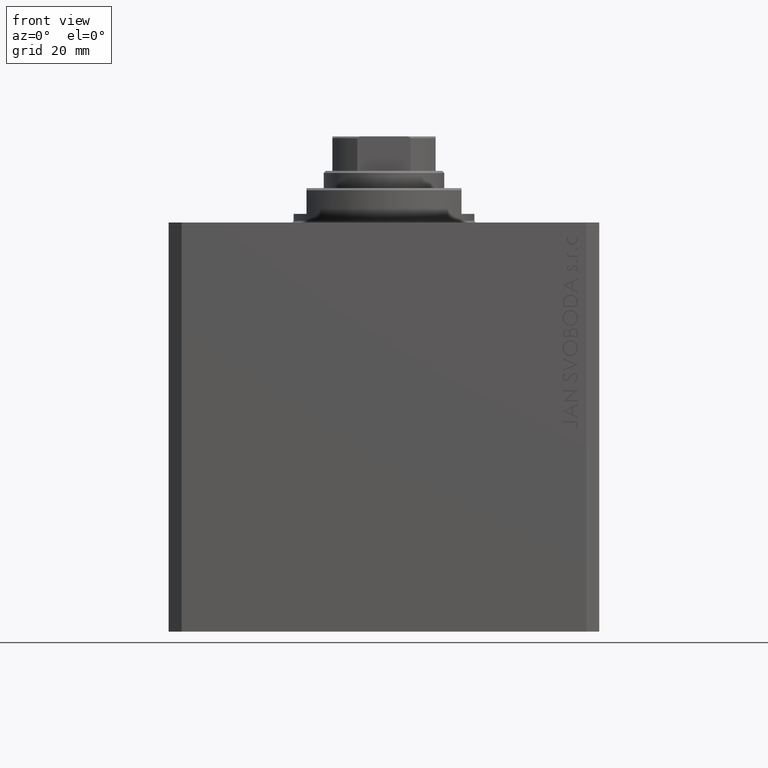
[diagram: clean part render]
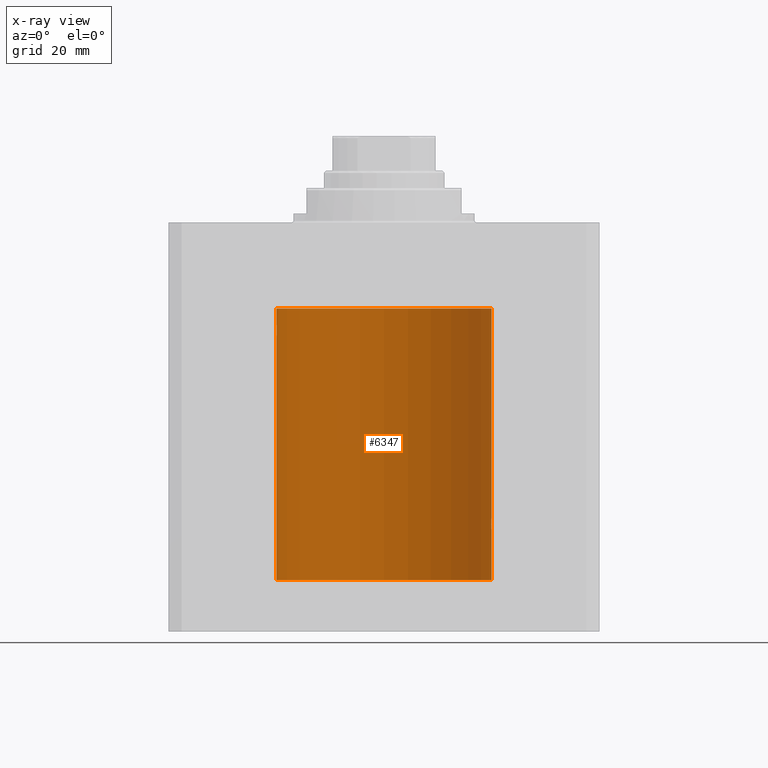
[diagram: x-ray — body ghosted, one internal face saturated and labeled with its STEP entity id]
A machine part, front view, then the same camera in x-ray: the body is ghosted and one INTERNAL B-rep face — a face not visible from any outside direction — is saturated and labeled: STEP entity #6347.
In plain terms, the highlighted cylindrical surface (partial cylindrical patch) has radius 25 mm, axis along (0, 0, 1).
Its self-contained STEP definition (entity closure, byte-faithful):
#191 = CARTESIAN_POINT ( 'NONE',  ( 25.00000000000000000, 0.1305261351234896783, -67.99999999999997158 ) ) ;
#663 = CARTESIAN_POINT ( 'NONE',  ( -24.93980871060585258, 1.735282661184229358, -26.00288189918856219 ) ) ;
#1345 = CARTESIAN_POINT ( 'NONE',  ( -25.00000000000000000, 3.061616987151861079E-15, -26.99999999999999645 ) ) ;
#1863 = VERTEX_POINT ( 'NONE', #43667 ) ;
#1873 = VERTEX_POINT ( 'NONE', #41627 ) ;
#2194 = FACE_OUTER_BOUND ( 'NONE', #11813, .T. ) ;
#2871 = CARTESIAN_POINT ( 'NONE',  ( 25.00000000000000000, 0.000000000000000000, -83.09999999999999432 ) ) ;
#2968 = CARTESIAN_POINT ( 'NONE',  ( -25.00000000000000000, -9.880247245846597702E-15, -23.00000000000000000 ) ) ;
#3514 = VERTEX_POINT ( 'NONE', #14035 ) ;
#3888 = CARTESIAN_POINT ( 'NONE',  ( 24.99496001540385848, 0.5180074392840622322, -71.93614799461352050 ) ) ;
#4031 = CARTESIAN_POINT ( 'NONE',  ( 24.98457651818866765, 0.8863534138924961114, -68.20234421602243913 ) ) ;
#4328 = CARTESIAN_POINT ( 'NONE',  ( 25.00000000000000000, 3.613683980139323145E-15, -72.00000000000001421 ) ) ;
#4603 = VECTOR ( 'NONE', #21443, 1000.000000000000000 ) ;
#4714 = CARTESIAN_POINT ( 'NONE',  ( 25.00000000000000000, 3.613683980139323145E-15, -72.00000000000001421 ) ) ;
#5977 = CARTESIAN_POINT ( 'NONE',  ( -25.00000000000000000, 3.061616997868383043E-15, -83.09999999999999432 ) ) ;
#5985 = EDGE_CURVE ( 'NONE', #1863, #3514, #9018, .T. ) ;
#6288 = CARTESIAN_POINT ( 'NONE',  ( 24.92092960952687264, 1.986938806757485132, -69.73699118910587913 ) ) ;
#6347 = ADVANCED_FACE ( 'NONE', ( #2194 ), #12779, .F. ) ;
#6657 = ORIENTED_EDGE ( 'NONE', *, *, #5985, .F. ) ;
#6665 = ORIENTED_EDGE ( 'NONE', *, *, #10261, .F. ) ;
#6765 = CARTESIAN_POINT ( 'NONE',  ( -24.91987913663314558, 1.999905953907249456, -24.73827023896789967 ) ) ;
#6989 = CARTESIAN_POINT ( 'NONE',  ( -24.93531696180024682, 1.797913585505315215, -25.88582454002299826 ) ) ;
#7216 = CARTESIAN_POINT ( 'NONE',  ( -24.98454822070441850, 0.8871466876120172040, -23.20273613247366384 ) ) ;
#7436 = CARTESIAN_POINT ( 'NONE',  ( -25.00000000000001066, 0.1305561315491718666, -27.00000000000000711 ) ) ;
#7477 = B_SPLINE_CURVE_WITH_KNOTS ( 'NONE', 3,
 ( #23435, #37177, #6288, #20052, #33816, #16663, #30432, #27050, #40788, #9896, #21616, #17343, #4031, #10577, #8077, #28622, #191, #34704 ),
 .UNSPECIFIED., .F., .F.,
 ( 4, 2, 2, 2, 2, 2, 2, 2, 4 ),
 ( 0.003128423524421375217, 0.003519296810509137119, 0.003910170096596899021, 0.004301043382684660923, 0.004691916668772423693, 0.005082789954860184728, 0.005473663240947946630, 0.005864536527035708532, 0.006255409813123470435 ),
 .UNSPECIFIED. ) ;
#8077 = CARTESIAN_POINT ( 'NONE',  ( 24.99493190796009046, 0.5194315891213243663, -68.06421314474678752 ) ) ;
#8162 = CARTESIAN_POINT ( 'NONE',  ( 24.92422785753204906, 1.947526681255389525, -70.52444535332155340 ) ) ;
#8743 = CARTESIAN_POINT ( 'NONE',  ( 0.000000000000000000, 0.000000000000000000, -83.09999999999999432 ) ) ;
#9018 = LINE ( 'NONE', #43270, #26111 ) ;
#9116 = EDGE_CURVE ( 'NONE', #17281, #10936, #16463, .T. ) ;
#9697 = CARTESIAN_POINT ( 'NONE',  ( -24.98014837415680489, 1.002010110534174547, -23.26418383162123149 ) ) ;
#9819 = VERTEX_POINT ( 'NONE', #33018 ) ;
#9896 = CARTESIAN_POINT ( 'NONE',  ( 24.96525661602875701, 1.320872503675244003, -68.49244428507738292 ) ) ;
#10153 = CARTESIAN_POINT ( 'NONE',  ( -24.93902394873053296, 1.747880816115506164, -23.99362802520557025 ) ) ;
#10261 = EDGE_CURVE ( 'NONE', #38335, #1863, #13971, .T. ) ;
#10386 = CARTESIAN_POINT ( 'NONE',  ( -24.92092244115666944, 1.987028274514494930, -25.26234881237649432 ) ) ;
#10422 = EDGE_CURVE ( 'NONE', #33625, #9819, #23128, .T. ) ;
#10577 = CARTESIAN_POINT ( 'NONE',  ( 24.99199530066696795, 0.6440939830361788188, -68.10201906410964057 ) ) ;
#10728 = VECTOR ( 'NONE', #42093, 1000.000000000000000 ) ;
#10936 = VERTEX_POINT ( 'NONE', #23174 ) ;
#11089 = CARTESIAN_POINT ( 'NONE',  ( 25.00000000000000355, 0.1322318523520167877, -72.00000000000002842 ) ) ;
#11269 = CARTESIAN_POINT ( 'NONE',  ( -24.98008786170526108, 1.003474227436682797, -26.73493817401089956 ) ) ;
#11316 = CARTESIAN_POINT ( 'NONE',  ( 24.99895171050671294, 0.2622427397369110347, -71.98701522632683236 ) ) ;
#11724 = CARTESIAN_POINT ( 'NONE',  ( -24.99894363691344168, 0.2631623743596695486, -26.98691550260398841 ) ) ;
#11813 = EDGE_LOOP ( 'NONE', ( #6657, #6665, #27739, #22679, #17185, #19389, #39231, #21791, #16407 ) ) ;
#12779 = CYLINDRICAL_SURFACE ( 'NONE', #20332, 25.00000000000000000 ) ;
#13767 = CARTESIAN_POINT ( 'NONE',  ( -24.91986783040116649, 2.000046828840892577, -25.12978542103931545 ) ) ;
#13935 = DIRECTION ( 'NONE',  ( 0.000000000000000000, 0.000000000000000000, 1.000000000000000000 ) ) ;
#13971 = CIRCLE ( 'NONE', #17573, 25.00000000000000000 ) ;
#14035 = CARTESIAN_POINT ( 'NONE',  ( -25.00000000000000000, 3.061616987151861079E-15, -26.99999999999999645 ) ) ;
#14259 = CARTESIAN_POINT ( 'NONE',  ( 24.94948532700468391, 1.599156973339999066, -71.22913415249136904 ) ) ;
#14591 = LINE ( 'NONE', #28363, #10728 ) ;
#14698 = CARTESIAN_POINT ( 'NONE',  ( 24.96516502151963124, 1.322522485723470531, -71.50597235110980421 ) ) ;
#16161 = DIRECTION ( 'NONE',  ( -0.000000000000000000, -0.000000000000000000, 1.000000000000000000 ) ) ;
#16407 = ORIENTED_EDGE ( 'NONE', *, *, #26209, .T. ) ;
#16463 = B_SPLINE_CURVE_WITH_KNOTS ( 'NONE', 3,
 ( #4328, #11089, #11316, #3888, #28925, #25077, #35218, #21696, #14698, #14259, #28470, #8162, #28243, #38380 ),
 .UNSPECIFIED., .F., .F.,
 ( 4, 2, 2, 2, 2, 2, 4 ),
 ( 3.511612687242254074E-18, 0.0003910529405526748294, 0.0007821058811053461894, 0.001173158821658017766, 0.001564211762210689343, 0.002346317643316032063, 0.003128423524421375217 ),
 .UNSPECIFIED. ) ;
#16663 = CARTESIAN_POINT ( 'NONE',  ( 24.93533359819881667, 1.797683477752171743, -69.11371245509397454 ) ) ;
#17141 = CARTESIAN_POINT ( 'NONE',  ( -24.97048098995609422, 1.219391728175664324, -23.40935049578022031 ) ) ;
#17185 = ORIENTED_EDGE ( 'NONE', *, *, #37445, .T. ) ;
#17281 = VERTEX_POINT ( 'NONE', #4714 ) ;
#17343 = CARTESIAN_POINT ( 'NONE',  ( 24.98009620012517829, 1.003265033550135854, -68.26494305889431757 ) ) ;
#17374 = DIRECTION ( 'NONE',  ( -0.000000000000000000, -0.000000000000000000, 1.000000000000000000 ) ) ;
#17573 = AXIS2_PLACEMENT_3D ( 'NONE', #40550, #37162, #30643 ) ;
#19389 = ORIENTED_EDGE ( 'NONE', *, *, #25460, .T. ) ;
#20020 = DIRECTION ( 'NONE',  ( 1.000000000000000000, 0.000000000000000000, 0.000000000000000000 ) ) ;
#20052 = CARTESIAN_POINT ( 'NONE',  ( 24.92495585240437350, 1.935777409849491759, -69.48051441220840729 ) ) ;
#20332 = AXIS2_PLACEMENT_3D ( 'NONE', #8743, #16161, #26760 ) ;
#20977 = CARTESIAN_POINT ( 'NONE',  ( -24.96517827869064021, 1.322271947215002852, -23.49381014772490417 ) ) ;
#21443 = DIRECTION ( 'NONE',  ( -0.000000000000000000, -0.000000000000000000, 1.000000000000000000 ) ) ;
#21616 = CARTESIAN_POINT ( 'NONE',  ( 24.97045842037802998, 1.219816859706691625, -68.40971381657300299 ) ) ;
#21696 = CARTESIAN_POINT ( 'NONE',  ( 24.97046928552373046, 1.219632852334577633, -71.59046721778373978 ) ) ;
#21791 = ORIENTED_EDGE ( 'NONE', *, *, #10422, .F. ) ;
#21875 = CARTESIAN_POINT ( 'NONE',  ( -24.94946096189906015, 1.590491165172939647, -26.21955560407613461 ) ) ;
#22679 = ORIENTED_EDGE ( 'NONE', *, *, #9116, .T. ) ;
#23128 = LINE ( 'NONE', #5977, #4603 ) ;
#23174 = CARTESIAN_POINT ( 'NONE',  ( 24.91987158875419794, 2.000000000000375255, -70.00000000000000000 ) ) ;
#23375 = VERTEX_POINT ( 'NONE', #41595 ) ;
#23435 = CARTESIAN_POINT ( 'NONE',  ( 24.91987158875419794, 2.000000000000375255, -70.00000000000000000 ) ) ;
#23461 = CARTESIAN_POINT ( 'NONE',  ( -24.94950203352433604, 1.598895442473012851, -23.77053781758364792 ) ) ;
#23911 = CARTESIAN_POINT ( 'NONE',  ( -24.92424086025528496, 1.947362422016076788, -24.47497476601984090 ) ) ;
#24142 = CARTESIAN_POINT ( 'NONE',  ( -24.92494360443313894, 1.935934657392621272, -25.51890776192067278 ) ) ;
#24362 = CARTESIAN_POINT ( 'NONE',  ( -24.99197317726958545, 0.6449463114735953795, -23.10230905830972858 ) ) ;
#25077 = CARTESIAN_POINT ( 'NONE',  ( 24.98454161695537223, 0.8873356620645981296, -71.79717267434570260 ) ) ;
#25460 = EDGE_CURVE ( 'NONE', #1873, #23375, #14591, .T. ) ;
#25480 = CARTESIAN_POINT ( 'NONE',  ( -24.99199174798888023, 0.6442364453337716679, -26.89793475977048232 ) ) ;
#26111 = VECTOR ( 'NONE', #33363, 1000.000000000000000 ) ;
#26209 = EDGE_CURVE ( 'NONE', #33625, #3514, #35623, .T. ) ;
#26760 = DIRECTION ( 'NONE',  ( 1.000000000000000000, 0.000000000000000000, 0.000000000000000000 ) ) ;
#27050 = CARTESIAN_POINT ( 'NONE',  ( 24.94947734723934829, 1.590234439578154468, -68.78011295253190838 ) ) ;
#27303 = CARTESIAN_POINT ( 'NONE',  ( -24.99895219182537787, 0.2621830013652935443, -23.01297886590101172 ) ) ;
#27387 = VECTOR ( 'NONE', #17374, 1000.000000000000000 ) ;
#27739 = ORIENTED_EDGE ( 'NONE', *, *, #42890, .T. ) ;
#27760 = CARTESIAN_POINT ( 'NONE',  ( -25.00000000000000000, -9.880247245846597702E-15, -23.00000000000000000 ) ) ;
#27978 = CARTESIAN_POINT ( 'NONE',  ( -24.98456984035221851, 0.8865449913022026562, -26.79756360895472156 ) ) ;
#28243 = CARTESIAN_POINT ( 'NONE',  ( 24.91987158875419439, 2.000000000000375699, -70.26107520611000723 ) ) ;
#28363 = CARTESIAN_POINT ( 'NONE',  ( 25.00000000000000000, 0.000000000000000000, -83.09999999999999432 ) ) ;
#28470 = CARTESIAN_POINT ( 'NONE',  ( 24.93900639076503722, 1.748128916801924504, -71.00595645684244062 ) ) ;
#28622 = CARTESIAN_POINT ( 'NONE',  ( 24.99894413130754600, 0.2631018416927612402, -68.01307842488789390 ) ) ;
#28925 = CARTESIAN_POINT ( 'NONE',  ( 24.99196954445030627, 0.6450912151121352966, -71.89764367645020116 ) ) ;
#30432 = CARTESIAN_POINT ( 'NONE',  ( 24.93982559358191153, 1.735040297787688646, -68.99670286233151728 ) ) ;
#30643 = DIRECTION ( 'NONE',  ( 1.000000000000000000, 0.000000000000000000, 0.000000000000000000 ) ) ;
#30970 = CIRCLE ( 'NONE', #33118, 25.00000000000000000 ) ;
#31370 = CARTESIAN_POINT ( 'NONE',  ( 25.00000000000000000, 0.000000000000000000, -83.09999999999999432 ) ) ;
#32244 = CARTESIAN_POINT ( 'NONE',  ( -24.96524308704138662, 1.321128302361972873, -26.50733385850702817 ) ) ;
#33018 = CARTESIAN_POINT ( 'NONE',  ( -25.00000000000000000, 3.061616997868383043E-15, -20.00000000000000355 ) ) ;
#33118 = AXIS2_PLACEMENT_3D ( 'NONE', #37152, #13935, #20020 ) ;
#33363 = DIRECTION ( 'NONE',  ( -0.000000000000000000, -0.000000000000000000, 1.000000000000000000 ) ) ;
#33625 = VERTEX_POINT ( 'NONE', #2968 ) ;
#33816 = CARTESIAN_POINT ( 'NONE',  ( 24.92790171662583276, 1.897957730269075105, -69.35585098575666052 ) ) ;
#34704 = CARTESIAN_POINT ( 'NONE',  ( 25.00000000000000000, -1.072061970195355044E-23, -68.00000000000000000 ) ) ;
#35218 = CARTESIAN_POINT ( 'NONE',  ( 24.98014008684978648, 1.002218476749560327, -71.73569824284065533 ) ) ;
#35623 = B_SPLINE_CURVE_WITH_KNOTS ( 'NONE', 3,
 ( #27760, #41482, #27303, #41040, #24362, #7216, #9697, #17141, #20977, #23461, #10153, #23911, #6765, #13767, #10386, #24142, #37889, #6989, #663, #21875, #41921, #32244, #42378, #11269, #27978, #25480, #39007, #11724, #7436, #1345 ),
 .UNSPECIFIED., .F., .F.,
 ( 4, 2, 2, 2, 2, 2, 2, 2, 2, 2, 2, 2, 2, 2, 4 ),
 ( 1.711460648662030874E-19, 0.0003909631133201684925, 0.0007819262266403368767, 0.001172889339960505152, 0.001563852453280673536, 0.002345778679921010305, 0.003127704906561347507, 0.003518668019881516108, 0.003909631133201684275, 0.004300594246521852876, 0.004691557359842020609, 0.005082520473162189210, 0.005473483586482357811, 0.005864446699802525545, 0.006255409813122695013 ),
 .UNSPECIFIED. ) ;
#37152 = CARTESIAN_POINT ( 'NONE',  ( 0.000000000000000000, 0.000000000000000000, -20.00000000000000355 ) ) ;
#37162 = DIRECTION ( 'NONE',  ( 0.000000000000000000, 0.000000000000000000, 1.000000000000000000 ) ) ;
#37177 = CARTESIAN_POINT ( 'NONE',  ( 24.91987158875419439, 2.000000000000375699, -69.86952236750347822 ) ) ;
#37445 = EDGE_CURVE ( 'NONE', #10936, #1873, #7477, .T. ) ;
#37889 = CARTESIAN_POINT ( 'NONE',  ( -24.92788761901291750, 1.898142276082072089, -25.64361034516351978 ) ) ;
#38335 = VERTEX_POINT ( 'NONE', #2871 ) ;
#38380 = CARTESIAN_POINT ( 'NONE',  ( 24.91987158875419794, 2.000000000000375255, -70.00000000000000000 ) ) ;
#39007 = CARTESIAN_POINT ( 'NONE',  ( -24.99492963589240091, 0.5195477780157325975, -26.93575766978349151 ) ) ;
#39231 = ORIENTED_EDGE ( 'NONE', *, *, #41577, .T. ) ;
#40550 = CARTESIAN_POINT ( 'NONE',  ( 0.000000000000000000, 0.000000000000000000, -83.09999999999999432 ) ) ;
#40788 = CARTESIAN_POINT ( 'NONE',  ( 24.95467834240023919, 1.507571193169164436, -68.67914516237102873 ) ) ;
#41040 = CARTESIAN_POINT ( 'NONE',  ( -24.99496228453478608, 0.5178909248663671194, -23.06382286360416956 ) ) ;
#41482 = CARTESIAN_POINT ( 'NONE',  ( -25.00000000000000000, 0.1322014778934262891, -23.00000000000000355 ) ) ;
#41577 = EDGE_CURVE ( 'NONE', #23375, #9819, #30970, .T. ) ;
#41595 = CARTESIAN_POINT ( 'NONE',  ( 25.00000000000000000, 0.000000000000000000, -20.00000000000000355 ) ) ;
#41627 = CARTESIAN_POINT ( 'NONE',  ( 25.00000000000000000, -1.072061970195355044E-23, -68.00000000000000000 ) ) ;
#41921 = CARTESIAN_POINT ( 'NONE',  ( -24.95466269969938011, 1.507830206157726893, -26.32056178261444046 ) ) ;
#42093 = DIRECTION ( 'NONE',  ( -0.000000000000000000, -0.000000000000000000, 1.000000000000000000 ) ) ;
#42378 = CARTESIAN_POINT ( 'NONE',  ( -24.97044682385318026, 1.220055540032808805, -26.59010549084178265 ) ) ;
#42890 = EDGE_CURVE ( 'NONE', #38335, #17281, #44636, .T. ) ;
#43270 = CARTESIAN_POINT ( 'NONE',  ( -25.00000000000000000, 3.061616997868383043E-15, -83.09999999999999432 ) ) ;
#43667 = CARTESIAN_POINT ( 'NONE',  ( -25.00000000000000000, 3.061616997868383043E-15, -83.09999999999999432 ) ) ;
#44636 = LINE ( 'NONE', #31370, #27387 ) ;